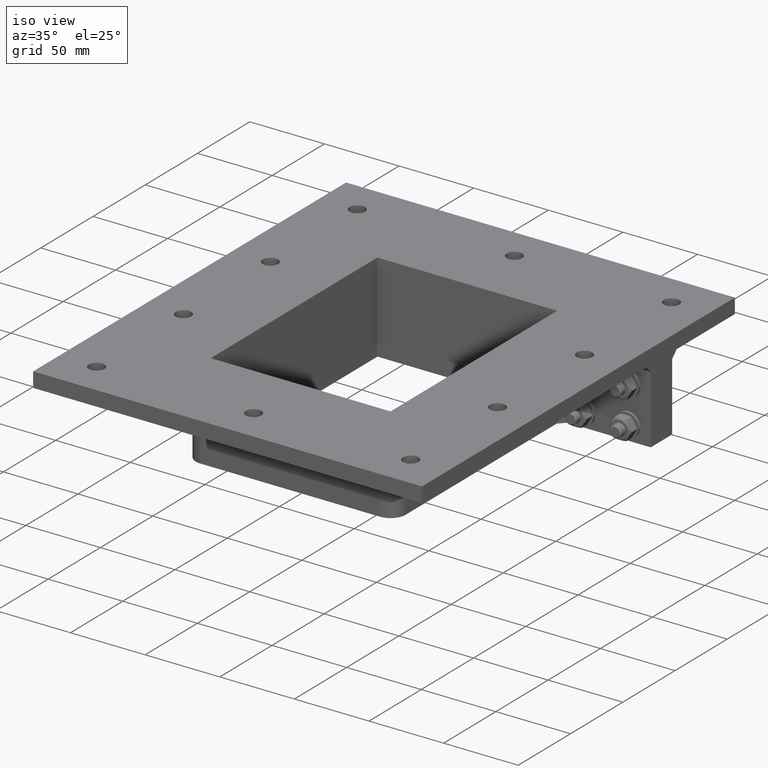
[diagram: clean part render]
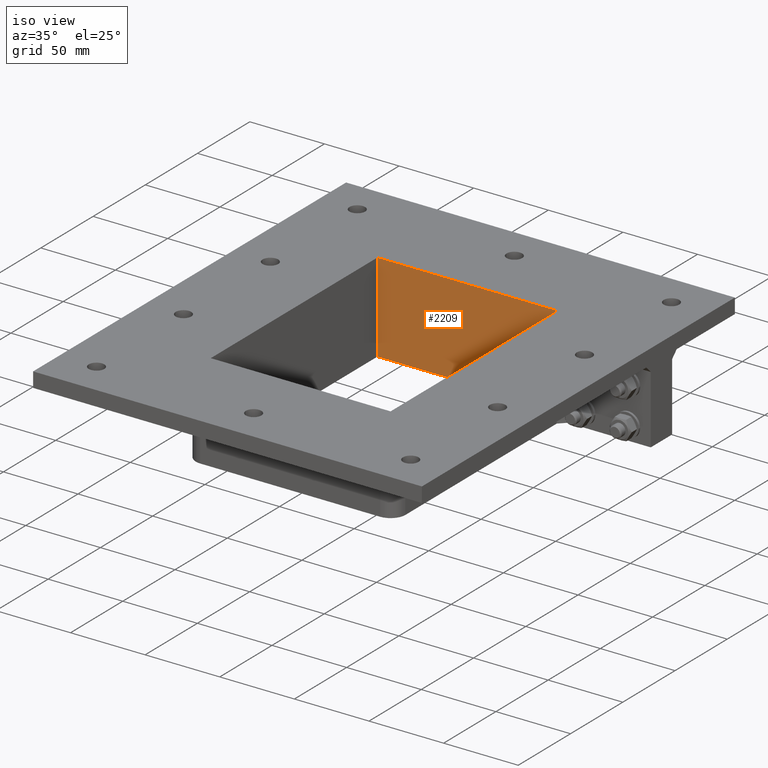
[diagram: same view with one face highlighted and labeled with its STEP entity id]
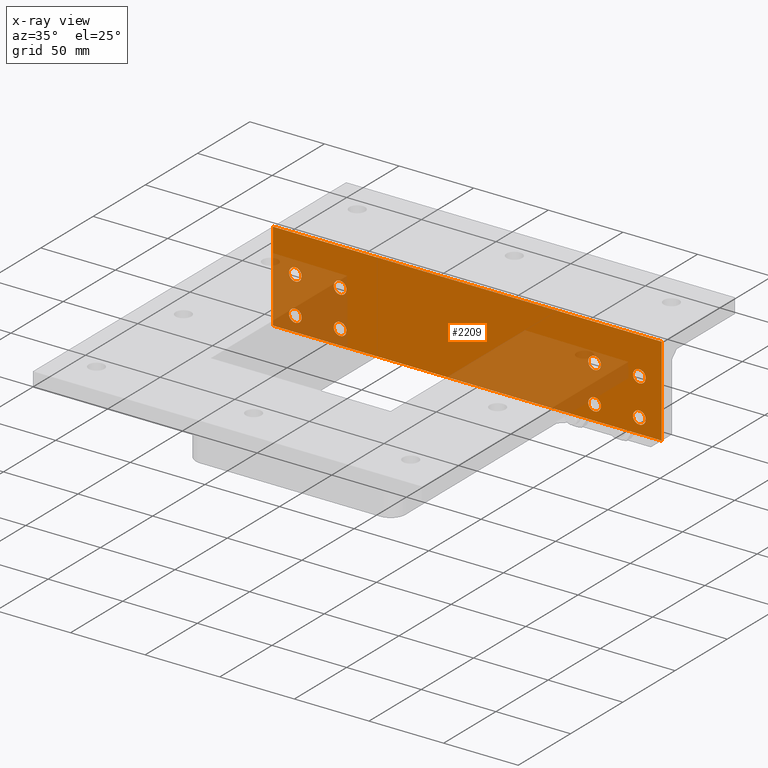
[diagram: x-ray of the same camera — body ghosted, the highlighted face saturated]
A machine part, iso view. The second image highlights one B-rep face of the part: STEP entity #2209.
The next image is the same camera in x-ray: the body ghosted, the highlighted face saturated — about 35% of this face is hidden behind the body in this view.
In plain terms, the highlighted planar face has unit normal (-0, 1, 0).
Its self-contained STEP definition (entity closure, byte-faithful):
#214=FACE_BOUND('',#582,.T.);
#215=FACE_BOUND('',#583,.T.);
#216=FACE_BOUND('',#584,.T.);
#217=FACE_BOUND('',#585,.T.);
#218=FACE_BOUND('',#586,.T.);
#219=FACE_BOUND('',#587,.T.);
#220=FACE_BOUND('',#588,.T.);
#221=FACE_BOUND('',#589,.T.);
#288=CIRCLE('',#2529,4.25);
#289=CIRCLE('',#2531,4.25);
#290=CIRCLE('',#2533,4.25);
#291=CIRCLE('',#2535,4.25);
#292=CIRCLE('',#2537,4.25);
#293=CIRCLE('',#2539,4.25);
#294=CIRCLE('',#2541,4.25);
#295=CIRCLE('',#2543,4.25);
#417=FACE_OUTER_BOUND('',#581,.T.);
#581=EDGE_LOOP('',(#1822,#1823,#1824,#1825));
#582=EDGE_LOOP('',(#1826));
#583=EDGE_LOOP('',(#1827));
#584=EDGE_LOOP('',(#1828));
#585=EDGE_LOOP('',(#1829));
#586=EDGE_LOOP('',(#1830));
#587=EDGE_LOOP('',(#1831));
#588=EDGE_LOOP('',(#1832));
#589=EDGE_LOOP('',(#1833));
#766=LINE('',#3641,#938);
#769=LINE('',#3653,#941);
#775=LINE('',#3669,#947);
#776=LINE('',#3671,#948);
#938=VECTOR('',#2995,10.);
#941=VECTOR('',#3006,10.);
#947=VECTOR('',#3022,10.);
#948=VECTOR('',#3025,10.);
#1100=VERTEX_POINT('',#3602);
#1101=VERTEX_POINT('',#3606);
#1102=VERTEX_POINT('',#3610);
#1103=VERTEX_POINT('',#3614);
#1104=VERTEX_POINT('',#3618);
#1105=VERTEX_POINT('',#3622);
#1106=VERTEX_POINT('',#3626);
#1107=VERTEX_POINT('',#3630);
#1108=VERTEX_POINT('',#3634);
#1111=VERTEX_POINT('',#3639);
#1116=VERTEX_POINT('',#3652);
#1121=VERTEX_POINT('',#3667);
#1332=EDGE_CURVE('',#1100,#1100,#288,.T.);
#1334=EDGE_CURVE('',#1101,#1101,#289,.T.);
#1336=EDGE_CURVE('',#1102,#1102,#290,.T.);
#1338=EDGE_CURVE('',#1103,#1103,#291,.T.);
#1340=EDGE_CURVE('',#1104,#1104,#292,.T.);
#1342=EDGE_CURVE('',#1105,#1105,#293,.T.);
#1344=EDGE_CURVE('',#1106,#1106,#294,.T.);
#1346=EDGE_CURVE('',#1107,#1107,#295,.T.);
#1351=EDGE_CURVE('',#1111,#1108,#766,.T.);
#1357=EDGE_CURVE('',#1108,#1116,#769,.T.);
#1366=EDGE_CURVE('',#1121,#1111,#775,.T.);
#1367=EDGE_CURVE('',#1116,#1121,#776,.T.);
#1822=ORIENTED_EDGE('',*,*,#1367,.F.);
#1823=ORIENTED_EDGE('',*,*,#1357,.F.);
#1824=ORIENTED_EDGE('',*,*,#1351,.F.);
#1825=ORIENTED_EDGE('',*,*,#1366,.F.);
#1826=ORIENTED_EDGE('',*,*,#1332,.T.);
#1827=ORIENTED_EDGE('',*,*,#1334,.T.);
#1828=ORIENTED_EDGE('',*,*,#1336,.T.);
#1829=ORIENTED_EDGE('',*,*,#1338,.T.);
#1830=ORIENTED_EDGE('',*,*,#1340,.T.);
#1831=ORIENTED_EDGE('',*,*,#1342,.T.);
#1832=ORIENTED_EDGE('',*,*,#1344,.T.);
#1833=ORIENTED_EDGE('',*,*,#1346,.T.);
#2113=PLANE('',#2559);
#2209=ADVANCED_FACE('',(#417,#214,#215,#216,#217,#218,#219,#220,#221),#2113,
 .F.);
#2529=AXIS2_PLACEMENT_3D('',#3603,#2952,#2953);
#2531=AXIS2_PLACEMENT_3D('',#3607,#2957,#2958);
#2533=AXIS2_PLACEMENT_3D('',#3611,#2962,#2963);
#2535=AXIS2_PLACEMENT_3D('',#3615,#2967,#2968);
#2537=AXIS2_PLACEMENT_3D('',#3619,#2972,#2973);
#2539=AXIS2_PLACEMENT_3D('',#3623,#2977,#2978);
#2541=AXIS2_PLACEMENT_3D('',#3627,#2982,#2983);
#2543=AXIS2_PLACEMENT_3D('',#3631,#2987,#2988);
#2559=AXIS2_PLACEMENT_3D('',#3679,#3037,#3038);
#2952=DIRECTION('center_axis',(-2.21123258016629E-16,1.,0.));
#2953=DIRECTION('ref_axis',(-1.,0.,0.));
#2957=DIRECTION('center_axis',(-2.21123258016629E-16,1.,0.));
#2958=DIRECTION('ref_axis',(-1.,0.,0.));
#2962=DIRECTION('center_axis',(-2.21123258016629E-16,1.,0.));
#2963=DIRECTION('ref_axis',(-1.,0.,0.));
#2967=DIRECTION('center_axis',(-2.21123258016629E-16,1.,0.));
#2968=DIRECTION('ref_axis',(-1.,0.,0.));
#2972=DIRECTION('center_axis',(-2.21123258016629E-16,1.,0.));
#2973=DIRECTION('ref_axis',(-1.,0.,0.));
#2977=DIRECTION('center_axis',(-2.21123258016629E-16,1.,0.));
#2978=DIRECTION('ref_axis',(-1.,0.,0.));
#2982=DIRECTION('center_axis',(-2.21123258016629E-16,1.,0.));
#2983=DIRECTION('ref_axis',(-1.,0.,0.));
#2987=DIRECTION('center_axis',(-2.21123258016629E-16,1.,0.));
#2988=DIRECTION('ref_axis',(-1.,0.,0.));
#2995=DIRECTION('',(1.,2.21123258016629E-16,0.));
#3006=DIRECTION('',(0.,0.,-1.));
#3022=DIRECTION('',(0.,0.,1.));
#3025=DIRECTION('',(-1.,0.,0.));
#3037=DIRECTION('center_axis',(-2.21123258016629E-16,1.,0.));
#3038=DIRECTION('ref_axis',(1.,2.21123258016629E-16,0.));
#3602=CARTESIAN_POINT('',(-111.,79.75,-25.));
#3603=CARTESIAN_POINT('Origin',(-115.25,79.75,-25.));
#3606=CARTESIAN_POINT('',(-81.,79.75,-25.));
#3607=CARTESIAN_POINT('Origin',(-85.25,79.75,-25.));
#3610=CARTESIAN_POINT('',(119.5,79.75,-50.));
#3611=CARTESIAN_POINT('Origin',(115.25,79.75,-50.));
#3614=CARTESIAN_POINT('',(89.5,79.75,-25.));
#3615=CARTESIAN_POINT('Origin',(85.25,79.75,-25.));
#3618=CARTESIAN_POINT('',(119.5,79.75,-25.));
#3619=CARTESIAN_POINT('Origin',(115.25,79.75,-25.));
#3622=CARTESIAN_POINT('',(89.5000000000001,79.75,-50.));
#3623=CARTESIAN_POINT('Origin',(85.2500000000001,79.75,-50.));
#3626=CARTESIAN_POINT('',(-81.0000000000001,79.75,-50.));
#3627=CARTESIAN_POINT('Origin',(-85.2500000000001,79.75,-50.));
#3630=CARTESIAN_POINT('',(-111.,79.75,-50.));
#3631=CARTESIAN_POINT('Origin',(-115.25,79.75,-50.));
#3634=CARTESIAN_POINT('',(130.25,79.75,0.));
#3639=CARTESIAN_POINT('',(-130.25,79.75,0.));
#3641=CARTESIAN_POINT('',(-30.125,79.75,0.));
#3652=CARTESIAN_POINT('',(130.25,79.75,-60.));
#3653=CARTESIAN_POINT('',(130.25,79.75,0.));
#3667=CARTESIAN_POINT('',(-130.25,79.75,-60.));
#3669=CARTESIAN_POINT('',(-130.25,79.75,0.));
#3671=CARTESIAN_POINT('',(130.25,79.75,-60.));
#3679=CARTESIAN_POINT('Origin',(-60.25,79.75,0.));